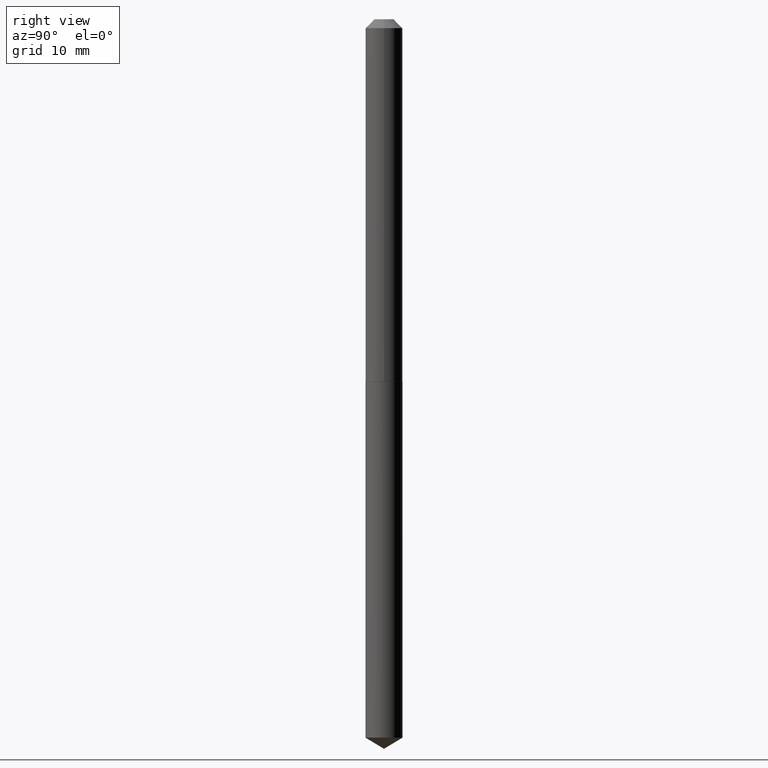
[diagram: clean part render]
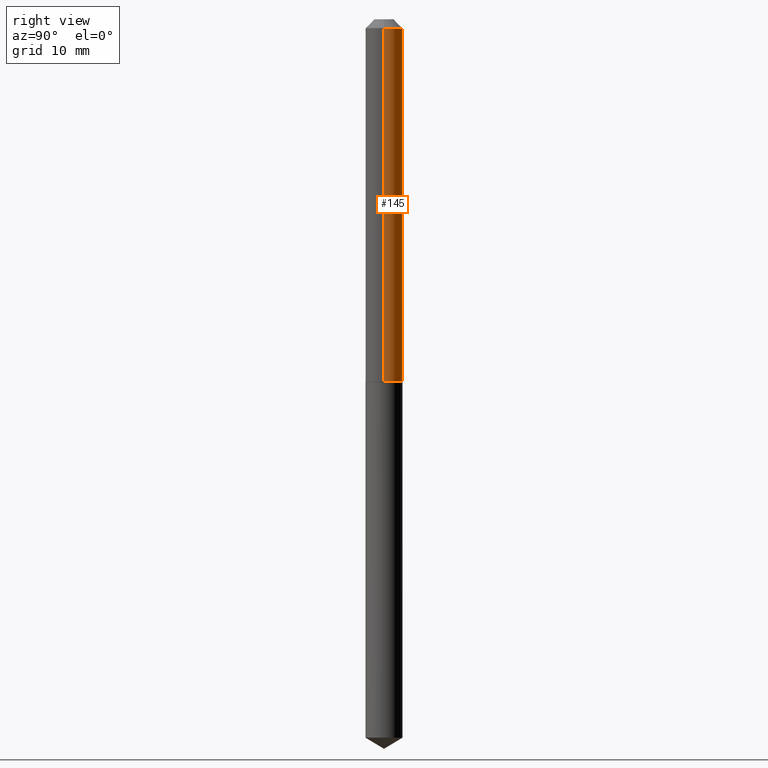
[diagram: same view with one face highlighted and labeled with its STEP entity id]
A machine part, right view. The second image highlights one B-rep face of the part: STEP entity #145.
In plain terms, the highlighted cylindrical surface (edge-blend (fillet) strip) has radius 1.6497 mm, axis along (-0, 0, 1).
Its self-contained STEP definition (entity closure, byte-faithful):
#2 = ORIENTED_EDGE ( 'NONE', *, *, #220, .F. ) ;
#10 = LINE ( 'NONE', #159, #65 ) ;
#24 = AXIS2_PLACEMENT_3D ( 'NONE', #107, #352, #43 ) ;
#30 = DIRECTION ( 'NONE',  ( -2.445468806185136597E-29, 3.491481338843145583E-15, 1.000000000000000000 ) ) ;
#33 = FACE_OUTER_BOUND ( 'NONE', #180, .T. ) ;
#35 = DIRECTION ( 'NONE',  ( 1.000000000000000000, -6.982962677686265922E-15, 4.876176775795935793E-29 ) ) ;
#43 = DIRECTION ( 'NONE',  ( 1.000000000000000000, -6.982962677686267499E-15, 0.000000000000000000 ) ) ;
#48 = DIRECTION ( 'NONE',  ( -2.445468806185136597E-29, 3.491481338843145583E-15, 1.000000000000000000 ) ) ;
#53 = VERTEX_POINT ( 'NONE', #64 ) ;
#64 = CARTESIAN_POINT ( 'NONE',  ( 0.06495000000000014651, -4.891914503853131360E-15, -1.271200000000000108 ) ) ;
#65 = VECTOR ( 'NONE', #104, 39.37007874015748143 ) ;
#66 = CARTESIAN_POINT ( 'NONE',  ( -0.06494999999999999385, -1.812242428011941536E-15, -0.03125000000000020123 ) ) ;
#74 = VERTEX_POINT ( 'NONE', #66 ) ;
#89 = EDGE_CURVE ( 'NONE', #182, #74, #10, .T. ) ;
#104 = DIRECTION ( 'NONE',  ( -2.445468806185136877E-29, 3.491481338843145188E-15, 1.000000000000000000 ) ) ;
#107 = CARTESIAN_POINT ( 'NONE',  ( 3.108679946422545888E-29, -4.438371077937407378E-15, -1.271200000000000108 ) ) ;
#114 = DIRECTION ( 'NONE',  ( 1.000000000000000000, -6.982962677686265133E-15, 0.000000000000000000 ) ) ;
#145 = ADVANCED_FACE ( 'NONE', ( #33 ), #196, .T. ) ;
#146 = AXIS2_PLACEMENT_3D ( 'NONE', #312, #30, #35 ) ;
#157 = EDGE_CURVE ( 'NONE', #53, #302, #163, .T. ) ;
#159 = CARTESIAN_POINT ( 'NONE',  ( -0.06495000000000007712, 4.614975068761856187E-16, -3.194848341120565109E-30 ) ) ;
#163 = LINE ( 'NONE', #164, #354 ) ;
#164 = CARTESIAN_POINT ( 'NONE',  ( 0.06495000000000007712, -4.535434259157234891E-16, 3.167076815879463918E-30 ) ) ;
#168 = CARTESIAN_POINT ( 'NONE',  ( -0.06495000000000014651, -3.976873571061221069E-15, -1.271200000000000108 ) ) ;
#174 = CARTESIAN_POINT ( 'NONE',  ( 7.642090019328601786E-31, -1.091087918388490144E-16, -0.03125000000000020123 ) ) ;
#180 = EDGE_LOOP ( 'NONE', ( #206, #335, #2, #389 ) ) ;
#182 = VERTEX_POINT ( 'NONE', #168 ) ;
#196 = CYLINDRICAL_SURFACE ( 'NONE', #146, 0.06495000000000007712 ) ;
#199 = CIRCLE ( 'NONE', #332, 0.06494999999999999385 ) ;
#206 = ORIENTED_EDGE ( 'NONE', *, *, #382, .T. ) ;
#209 = CIRCLE ( 'NONE', #24, 0.06495000000000014651 ) ;
#220 = EDGE_CURVE ( 'NONE', #302, #74, #199, .T. ) ;
#237 = CARTESIAN_POINT ( 'NONE',  ( 0.06494999999999999385, -5.626522177545718995E-16, -0.03125000000000020123 ) ) ;
#288 = DIRECTION ( 'NONE',  ( -2.445468806185136877E-29, 3.491481338843145188E-15, 1.000000000000000000 ) ) ;
#302 = VERTEX_POINT ( 'NONE', #237 ) ;
#312 = CARTESIAN_POINT ( 'NONE',  ( 0.000000000000000000, 0.000000000000000000, 0.000000000000000000 ) ) ;
#332 = AXIS2_PLACEMENT_3D ( 'NONE', #174, #48, #114 ) ;
#335 = ORIENTED_EDGE ( 'NONE', *, *, #89, .T. ) ;
#352 = DIRECTION ( 'NONE',  ( -2.445468806185136597E-29, 3.491481338843145583E-15, 1.000000000000000000 ) ) ;
#354 = VECTOR ( 'NONE', #288, 39.37007874015748143 ) ;
#382 = EDGE_CURVE ( 'NONE', #53, #182, #209, .T. ) ;
#389 = ORIENTED_EDGE ( 'NONE', *, *, #157, .F. ) ;